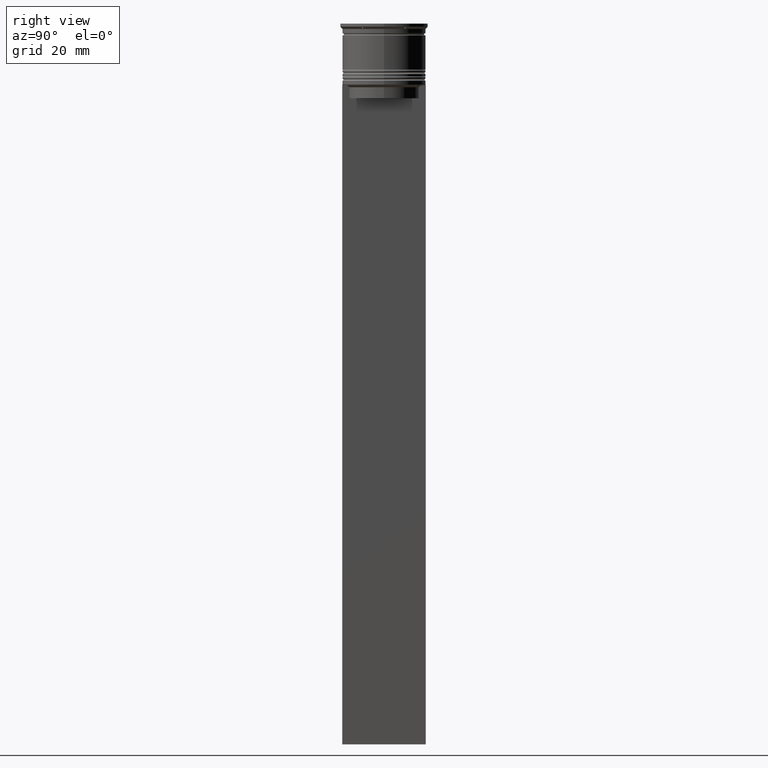
[diagram: clean part render]
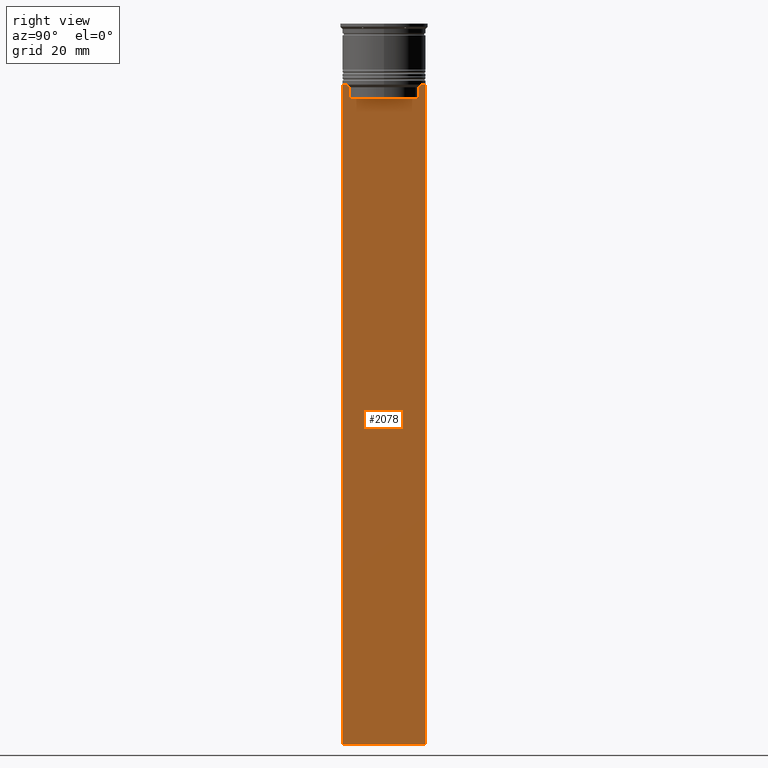
[diagram: same view with one face highlighted and labeled with its STEP entity id]
A machine part, right view. The second image highlights one B-rep face of the part: STEP entity #2078.
In plain terms, the highlighted planar face has unit normal (-1, 0, 0).
Its self-contained STEP definition (entity closure, byte-faithful):
#40 = EDGE_CURVE ( 'NONE', #294, #1814, #1271, .T. ) ;
#73 = CARTESIAN_POINT ( 'NONE',  ( 0.5000000000000000000, 8.385105843100605583, -14.00000000000000178 ) ) ;
#130 = LINE ( 'NONE', #2417, #872 ) ;
#131 = ORIENTED_EDGE ( 'NONE', *, *, #888, .T. ) ;
#136 = EDGE_CURVE ( 'NONE', #281, #971, #2364, .T. ) ;
#153 = CARTESIAN_POINT ( 'NONE',  ( 0.5000000000000000000, -7.884161337770803080, -14.50000000000000000 ) ) ;
#177 = ORIENTED_EDGE ( 'NONE', *, *, #2516, .T. ) ;
#244 = EDGE_CURVE ( 'NONE', #2203, #281, #1661, .T. ) ;
#255 = LINE ( 'NONE', #2546, #2162 ) ;
#275 = DIRECTION ( 'NONE',  ( 0.000000000000000000, -1.000000000000000000, 0.000000000000000000 ) ) ;
#281 = VERTEX_POINT ( 'NONE', #73 ) ;
#294 = VERTEX_POINT ( 'NONE', #1329 ) ;
#295 = DIRECTION ( 'NONE',  ( 0.000000000000000000, 0.000000000000000000, 1.000000000000000000 ) ) ;
#331 = CARTESIAN_POINT ( 'NONE',  ( 0.5000000000000000000, -8.218133703942523738, -14.16667607853445787 ) ) ;
#371 = CARTESIAN_POINT ( 'NONE',  ( 0.5000000000000000000, -7.884161337770803080, -17.00000000000000000 ) ) ;
#375 = EDGE_CURVE ( 'NONE', #2168, #2604, #2173, .T. ) ;
#397 = VERTEX_POINT ( 'NONE', #371 ) ;
#524 = VECTOR ( 'NONE', #886, 1000.000000000000000 ) ;
#539 = CARTESIAN_POINT ( 'NONE',  ( 0.5000000000000000000, -7.884161337770803080, 0.000000000000000000 ) ) ;
#542 = EDGE_CURVE ( 'NONE', #2549, #898, #1284, .T. ) ;
#548 = DIRECTION ( 'NONE',  ( 0.000000000000000000, -1.000000000000000000, 0.000000000000000000 ) ) ;
#559 = CARTESIAN_POINT ( 'NONE',  ( 0.5000000000000000000, -9.500000000000001776, -14.00000000000000178 ) ) ;
#589 = ORIENTED_EDGE ( 'NONE', *, *, #622, .T. ) ;
#601 = EDGE_CURVE ( 'NONE', #1814, #2604, #255, .T. ) ;
#613 = CARTESIAN_POINT ( 'NONE',  ( 0.5000000000000000000, 7.884161337770803080, -14.50000000000000000 ) ) ;
#616 = CARTESIAN_POINT ( 'NONE',  ( 0.5000000000000000000, -9.500000000000001776, 5.026297590440445440 ) ) ;
#622 = EDGE_CURVE ( 'NONE', #1612, #397, #1718, .T. ) ;
#696 = CARTESIAN_POINT ( 'NONE',  ( 0.5000000000000000000, 9.499999999999998224, 5.026297590440445440 ) ) ;
#725 = CARTESIAN_POINT ( 'NONE',  ( 0.5000000000000000000, -9.500000000000001776, -163.9999999999999716 ) ) ;
#730 = B_SPLINE_CURVE_WITH_KNOTS ( 'NONE', 3,
 ( #969, #1787, #331, #2619 ),
 .UNSPECIFIED., .F., .F.,
 ( 4, 4 ),
 ( 0.03673372442973153046, 0.03744389749832059688 ),
 .UNSPECIFIED. ) ;
#770 = ORIENTED_EDGE ( 'NONE', *, *, #375, .F. ) ;
#779 = LINE ( 'NONE', #2216, #1890 ) ;
#845 = CARTESIAN_POINT ( 'NONE',  ( 0.5000000000000000000, 9.499999999999998224, -163.9999999999999716 ) ) ;
#853 = CARTESIAN_POINT ( 'NONE',  ( 0.5000000000000000000, -9.500000000000001776, -14.00000000000000178 ) ) ;
#859 = CARTESIAN_POINT ( 'NONE',  ( 0.5000000000000000000, 8.385105843100605583, -14.00000000000000178 ) ) ;
#872 = VECTOR ( 'NONE', #1564, 1000.000000000000000 ) ;
#886 = DIRECTION ( 'NONE',  ( 0.000000000000000000, 0.000000000000000000, -1.000000000000000000 ) ) ;
#888 = EDGE_CURVE ( 'NONE', #898, #294, #779, .T. ) ;
#898 = VERTEX_POINT ( 'NONE', #1602 ) ;
#913 = VECTOR ( 'NONE', #275, 1000.000000000000000 ) ;
#969 = CARTESIAN_POINT ( 'NONE',  ( 0.5000000000000000000, -7.884161337770803080, -14.50000000000000000 ) ) ;
#971 = VERTEX_POINT ( 'NONE', #1195 ) ;
#1019 = EDGE_CURVE ( 'NONE', #2168, #2203, #2399, .T. ) ;
#1050 = CARTESIAN_POINT ( 'NONE',  ( 0.5000000000000000000, 8.051152811434374001, -14.33334332653219079 ) ) ;
#1099 = CARTESIAN_POINT ( 'NONE',  ( 0.5000000000000000000, -9.500000000000001776, 5.026297590440445440 ) ) ;
#1100 = CARTESIAN_POINT ( 'NONE',  ( 0.5000000000000000000, 7.899999999999994138, -17.00000000000000000 ) ) ;
#1103 = ORIENTED_EDGE ( 'NONE', *, *, #1494, .T. ) ;
#1180 = CARTESIAN_POINT ( 'NONE',  ( 0.5000000000000000000, 9.386692708297204035, -14.00000000000000178 ) ) ;
#1195 = CARTESIAN_POINT ( 'NONE',  ( 0.5000000000000000000, 7.884161337770803080, -14.50000000000000000 ) ) ;
#1248 = DIRECTION ( 'NONE',  ( 0.000000000000000000, -1.000000000000000000, 0.000000000000000000 ) ) ;
#1271 = LINE ( 'NONE', #1099, #1839 ) ;
#1274 = ORIENTED_EDGE ( 'NONE', *, *, #136, .T. ) ;
#1284 = LINE ( 'NONE', #853, #913 ) ;
#1329 = CARTESIAN_POINT ( 'NONE',  ( 0.5000000000000000000, -9.500000000000001776, -14.00000000000000178 ) ) ;
#1397 = EDGE_LOOP ( 'NONE', ( #1570, #1274, #1103, #589, #177, #2323, #2001, #131, #2559, #2610, #770, #1676 ) ) ;
#1449 = CARTESIAN_POINT ( 'NONE',  ( 0.5000000000000000000, -9.500000000000001776, -14.00000000000000178 ) ) ;
#1494 = EDGE_CURVE ( 'NONE', #971, #1612, #130, .T. ) ;
#1499 = DIRECTION ( 'NONE',  ( 0.000000000000000000, -1.000000000000000000, 0.000000000000000000 ) ) ;
#1564 = DIRECTION ( 'NONE',  ( 0.000000000000000000, 0.000000000000000000, -1.000000000000000000 ) ) ;
#1570 = ORIENTED_EDGE ( 'NONE', *, *, #244, .T. ) ;
#1602 = CARTESIAN_POINT ( 'NONE',  ( 0.5000000000000000000, -9.386692708297204035, -14.00000000000000178 ) ) ;
#1612 = VERTEX_POINT ( 'NONE', #2288 ) ;
#1661 = LINE ( 'NONE', #1449, #1979 ) ;
#1676 = ORIENTED_EDGE ( 'NONE', *, *, #1019, .T. ) ;
#1715 = DIRECTION ( 'NONE',  ( 0.000000000000000000, 0.000000000000000000, -1.000000000000000000 ) ) ;
#1718 = LINE ( 'NONE', #1100, #2667 ) ;
#1787 = CARTESIAN_POINT ( 'NONE',  ( 0.5000000000000000000, -8.051152795888546265, -14.33334334204685057 ) ) ;
#1814 = VERTEX_POINT ( 'NONE', #725 ) ;
#1839 = VECTOR ( 'NONE', #1715, 1000.000000000000000 ) ;
#1844 = CARTESIAN_POINT ( 'NONE',  ( 0.5000000000000000000, -8.385105843100605583, -14.00000000000000178 ) ) ;
#1845 = PLANE ( 'NONE',  #2349 ) ;
#1858 = VERTEX_POINT ( 'NONE', #153 ) ;
#1890 = VECTOR ( 'NONE', #2431, 1000.000000000000000 ) ;
#1945 = VECTOR ( 'NONE', #2209, 1000.000000000000000 ) ;
#1979 = VECTOR ( 'NONE', #1248, 1000.000000000000000 ) ;
#1983 = CARTESIAN_POINT ( 'NONE',  ( 0.5000000000000000000, 9.499999999999998224, -14.00000000000000178 ) ) ;
#1985 = VECTOR ( 'NONE', #548, 1000.000000000000000 ) ;
#2001 = ORIENTED_EDGE ( 'NONE', *, *, #542, .T. ) ;
#2078 = ADVANCED_FACE ( 'NONE', ( #2464 ), #1845, .F. ) ;
#2162 = VECTOR ( 'NONE', #2318, 1000.000000000000000 ) ;
#2168 = VERTEX_POINT ( 'NONE', #1983 ) ;
#2173 = LINE ( 'NONE', #696, #524 ) ;
#2203 = VERTEX_POINT ( 'NONE', #1180 ) ;
#2209 = DIRECTION ( 'NONE',  ( -0.000000000000000000, -0.000000000000000000, 1.000000000000000000 ) ) ;
#2216 = CARTESIAN_POINT ( 'NONE',  ( 0.5000000000000000000, -9.500000000000001776, -14.00000000000000178 ) ) ;
#2288 = CARTESIAN_POINT ( 'NONE',  ( 0.5000000000000000000, 7.884161337770803080, -17.00000000000000000 ) ) ;
#2318 = DIRECTION ( 'NONE',  ( 0.000000000000000000, 1.000000000000000000, 0.000000000000000000 ) ) ;
#2323 = ORIENTED_EDGE ( 'NONE', *, *, #2404, .T. ) ;
#2349 = AXIS2_PLACEMENT_3D ( 'NONE', #616, #2350, #295 ) ;
#2350 = DIRECTION ( 'NONE',  ( -1.000000000000000000, 0.000000000000000000, 0.000000000000000000 ) ) ;
#2364 = B_SPLINE_CURVE_WITH_KNOTS ( 'NONE', 3,
 ( #859, #2515, #1050, #613 ),
 .UNSPECIFIED., .F., .F.,
 ( 4, 4 ),
 ( 0.01426761478740281447, 0.01497538974438914448 ),
 .UNSPECIFIED. ) ;
#2390 = LINE ( 'NONE', #539, #1945 ) ;
#2399 = LINE ( 'NONE', #559, #1985 ) ;
#2404 = EDGE_CURVE ( 'NONE', #1858, #2549, #730, .T. ) ;
#2417 = CARTESIAN_POINT ( 'NONE',  ( 0.5000000000000000000, 7.884161337770803080, 0.000000000000000000 ) ) ;
#2431 = DIRECTION ( 'NONE',  ( 0.000000000000000000, -1.000000000000000000, 0.000000000000000000 ) ) ;
#2464 = FACE_OUTER_BOUND ( 'NONE', #1397, .T. ) ;
#2515 = CARTESIAN_POINT ( 'NONE',  ( 0.5000000000000000000, 8.218133718559618828, -14.16667606394327983 ) ) ;
#2516 = EDGE_CURVE ( 'NONE', #397, #1858, #2390, .T. ) ;
#2546 = CARTESIAN_POINT ( 'NONE',  ( 0.5000000000000000000, -9.500000000000001776, -163.9999999999999716 ) ) ;
#2549 = VERTEX_POINT ( 'NONE', #1844 ) ;
#2559 = ORIENTED_EDGE ( 'NONE', *, *, #40, .T. ) ;
#2604 = VERTEX_POINT ( 'NONE', #845 ) ;
#2610 = ORIENTED_EDGE ( 'NONE', *, *, #601, .T. ) ;
#2619 = CARTESIAN_POINT ( 'NONE',  ( 0.5000000000000000000, -8.385105843100605583, -14.00000000000000178 ) ) ;
#2667 = VECTOR ( 'NONE', #1499, 1000.000000000000000 ) ;